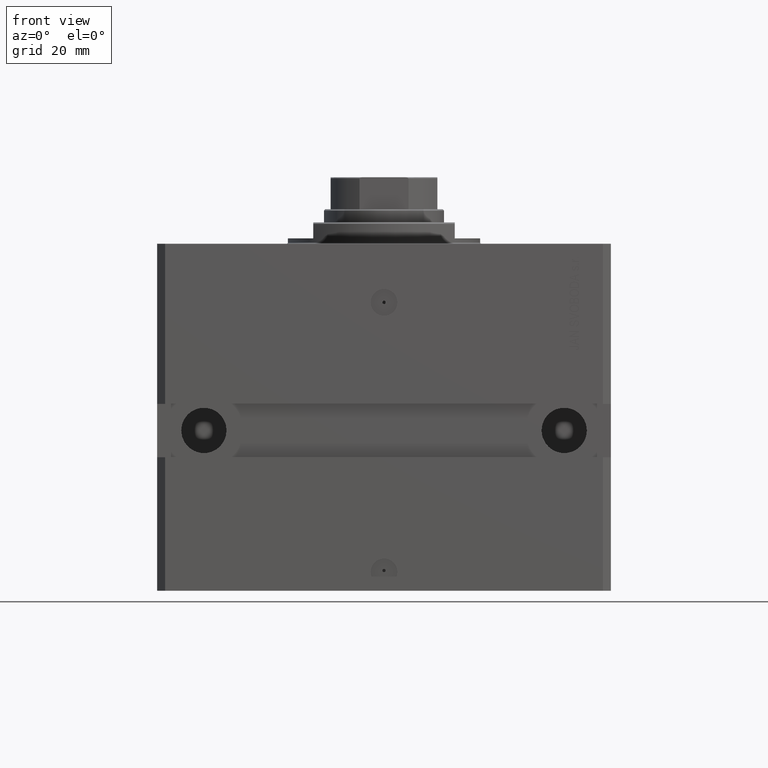
[diagram: clean part render]
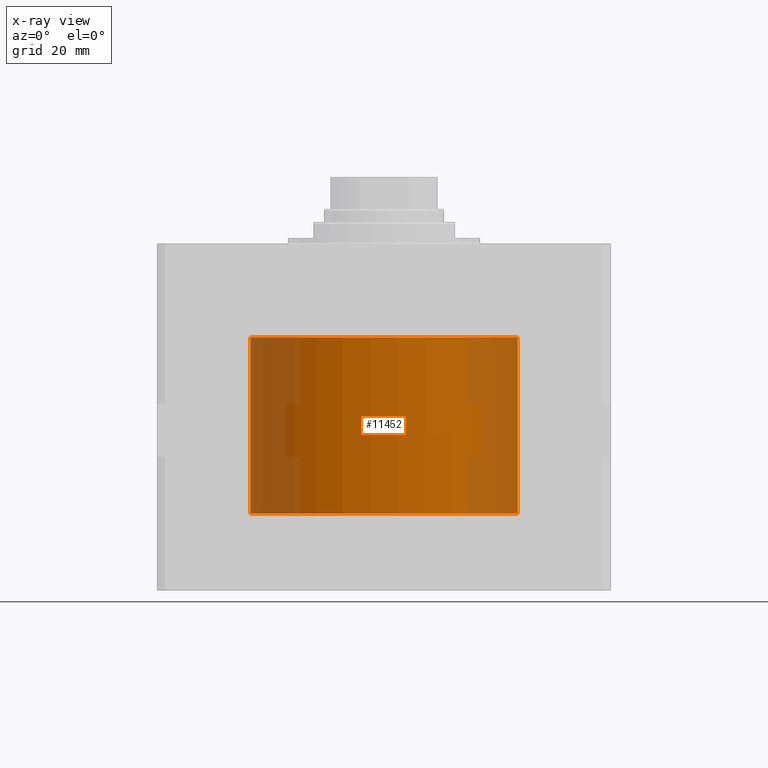
[diagram: x-ray — body ghosted, one internal face saturated and labeled with its STEP entity id]
A machine part, front view, then the same camera in x-ray: the body is ghosted and one INTERNAL B-rep face — a face not visible from any outside direction — is saturated and labeled: STEP entity #11452.
In plain terms, the highlighted cylindrical surface (partial cylindrical patch) has radius 50 mm, axis along (0, 0, 1).
Its self-contained STEP definition (entity closure, byte-faithful):
#742 = CIRCLE ( 'NONE', #29962, 50.00000000000000000 ) ;
#2145 = CARTESIAN_POINT ( 'NONE',  ( 0.000000000000000000, 0.000000000000000000, -101.0999999999999943 ) ) ;
#7649 = ORIENTED_EDGE ( 'NONE', *, *, #17610, .F. ) ;
#8353 = DIRECTION ( 'NONE',  ( 1.000000000000000000, 0.000000000000000000, 0.000000000000000000 ) ) ;
#9561 = FACE_OUTER_BOUND ( 'NONE', #39000, .T. ) ;
#11452 = ADVANCED_FACE ( 'NONE', ( #9561 ), #24666, .F. ) ;
#15678 = EDGE_CURVE ( 'NONE', #38184, #36677, #742, .T. ) ;
#16070 = CIRCLE ( 'NONE', #30298, 50.00000000000000000 ) ;
#17232 = DIRECTION ( 'NONE',  ( -0.000000000000000000, -0.000000000000000000, 1.000000000000000000 ) ) ;
#17610 = EDGE_CURVE ( 'NONE', #36677, #35264, #34185, .T. ) ;
#20561 = VECTOR ( 'NONE', #44829, 1000.000000000000000 ) ;
#21532 = ORIENTED_EDGE ( 'NONE', *, *, #15678, .F. ) ;
#23973 = ORIENTED_EDGE ( 'NONE', *, *, #45912, .T. ) ;
#24666 = CYLINDRICAL_SURFACE ( 'NONE', #42553, 50.00000000000000000 ) ;
#27165 = CARTESIAN_POINT ( 'NONE',  ( 0.000000000000000000, 0.000000000000000000, -101.0999999999999943 ) ) ;
#28036 = VERTEX_POINT ( 'NONE', #38109 ) ;
#28739 = VECTOR ( 'NONE', #44685, 1000.000000000000000 ) ;
#29601 = CARTESIAN_POINT ( 'NONE',  ( -50.00000000000000000, 6.123233995736766085E-15, -101.0999999999999943 ) ) ;
#29755 = CARTESIAN_POINT ( 'NONE',  ( 50.00000000000000000, 0.000000000000000000, -101.0999999999999943 ) ) ;
#29962 = AXIS2_PLACEMENT_3D ( 'NONE', #27165, #42242, #8353 ) ;
#30298 = AXIS2_PLACEMENT_3D ( 'NONE', #42418, #46378, #47782 ) ;
#32294 = CARTESIAN_POINT ( 'NONE',  ( -50.00000000000000000, 6.123233995736766085E-15, -101.0999999999999943 ) ) ;
#32333 = DIRECTION ( 'NONE',  ( 1.000000000000000000, 0.000000000000000000, 0.000000000000000000 ) ) ;
#32978 = ORIENTED_EDGE ( 'NONE', *, *, #45180, .T. ) ;
#33552 = LINE ( 'NONE', #29601, #28739 ) ;
#34185 = LINE ( 'NONE', #29755, #20561 ) ;
#35264 = VERTEX_POINT ( 'NONE', #48879 ) ;
#36677 = VERTEX_POINT ( 'NONE', #39033 ) ;
#38109 = CARTESIAN_POINT ( 'NONE',  ( -50.00000000000000000, 6.123233995736766085E-15, -35.10000000000000142 ) ) ;
#38184 = VERTEX_POINT ( 'NONE', #32294 ) ;
#39000 = EDGE_LOOP ( 'NONE', ( #21532, #23973, #32978, #7649 ) ) ;
#39033 = CARTESIAN_POINT ( 'NONE',  ( 50.00000000000000000, 0.000000000000000000, -101.0999999999999943 ) ) ;
#42242 = DIRECTION ( 'NONE',  ( 0.000000000000000000, 0.000000000000000000, 1.000000000000000000 ) ) ;
#42418 = CARTESIAN_POINT ( 'NONE',  ( 0.000000000000000000, 0.000000000000000000, -35.10000000000000142 ) ) ;
#42553 = AXIS2_PLACEMENT_3D ( 'NONE', #2145, #17232, #32333 ) ;
#44685 = DIRECTION ( 'NONE',  ( -0.000000000000000000, -0.000000000000000000, 1.000000000000000000 ) ) ;
#44829 = DIRECTION ( 'NONE',  ( -0.000000000000000000, -0.000000000000000000, 1.000000000000000000 ) ) ;
#45180 = EDGE_CURVE ( 'NONE', #28036, #35264, #16070, .T. ) ;
#45912 = EDGE_CURVE ( 'NONE', #38184, #28036, #33552, .T. ) ;
#46378 = DIRECTION ( 'NONE',  ( 0.000000000000000000, 0.000000000000000000, 1.000000000000000000 ) ) ;
#47782 = DIRECTION ( 'NONE',  ( 1.000000000000000000, 0.000000000000000000, 0.000000000000000000 ) ) ;
#48879 = CARTESIAN_POINT ( 'NONE',  ( 50.00000000000000000, 0.000000000000000000, -35.10000000000000142 ) ) ;